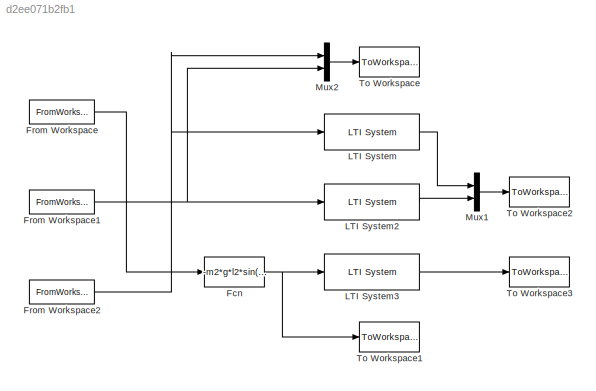
MODEL slx_d2ee071b2fb1
KIND model
BLOCK [Fcn] Fcn
  Expr = -m2*g*l2*sin(u(1))
BLOCK [FromWorkspace] From Workspace
  SampleTime = 0
  VariableName = [t phi2]
BLOCK [FromWorkspace] From Workspace1
  SampleTime = 0
  VariableName = [t dphi2]
BLOCK [FromWorkspace] From Workspace2
  SampleTime = 0
  VariableName = [t ddphi2]
BLOCK [Reference] LTI System  REF=cstblocks/LTI System
  IC = []
  Ports = [1, 1]
  SourceBlock = cstblocks/LTI System
  SourceType = LTI Block
  sys = tf(1,[Tf2 1])^3
BLOCK [Reference] LTI System2  REF=cstblocks/LTI System
  IC = []
  Ports = [1, 1]
  SourceBlock = cstblocks/LTI System
  SourceType = LTI Block
  sys = tf(1,[Tf2 1])^3
BLOCK [Reference] LTI System3  REF=cstblocks/LTI System
  IC = []
  Ports = [1, 1]
  SourceBlock = cstblocks/LTI System
  SourceType = LTI Block
  sys = tf(1,[Tf2 1])^3
BLOCK [Mux] Mux1
  DisplayOption = bar
  Inputs = 2
  Ports = [2, 1]
BLOCK [Mux] Mux2
  DisplayOption = bar
  Inputs = 2
  Ports = [2, 1]
BLOCK [ToWorkspace] To Workspace
  MaxDataPoints = inf
  Ports = [1]
  SampleTime = -1
  VariableName = Ms2
BLOCK [ToWorkspace] To Workspace1
  MaxDataPoints = inf
  Ports = [1]
  SampleTime = -1
  VariableName = Ns2
BLOCK [ToWorkspace] To Workspace2
  MaxDataPoints = inf
  Ports = [1]
  SampleTime = -1
  VariableName = Mfs2
BLOCK [ToWorkspace] To Workspace3
  MaxDataPoints = inf
  Ports = [1]
  SampleTime = -1
  VariableName = Nfs2
NET Fcn:1 -> LTI System3:1, To Workspace1:1
NET From Workspace1:1 -> LTI System2:1, Mux2:2
NET From Workspace2:1 -> LTI System:1, Mux2:1
LINE From Workspace:1 -> Fcn:1
LINE LTI System2:1 -> Mux1:2
LINE LTI System3:1 -> To Workspace3:1
LINE LTI System:1 -> Mux1:1
LINE Mux1:1 -> To Workspace2:1
LINE Mux2:1 -> To Workspace:1
note: NET lines group one-source signal fan-out (src -> all destinations, sorted); 1:1 wires keep LINE
